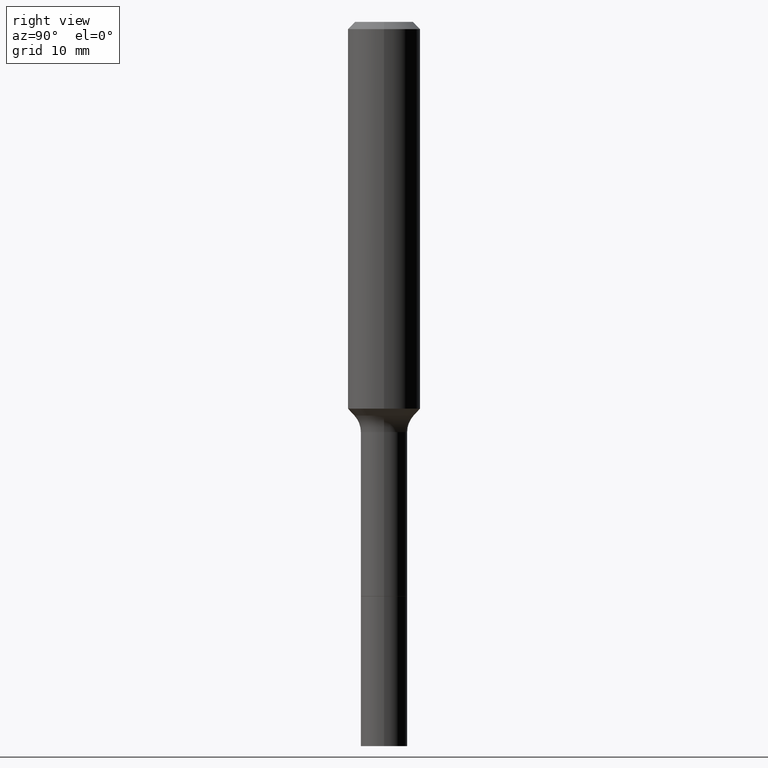
[diagram: clean part render]
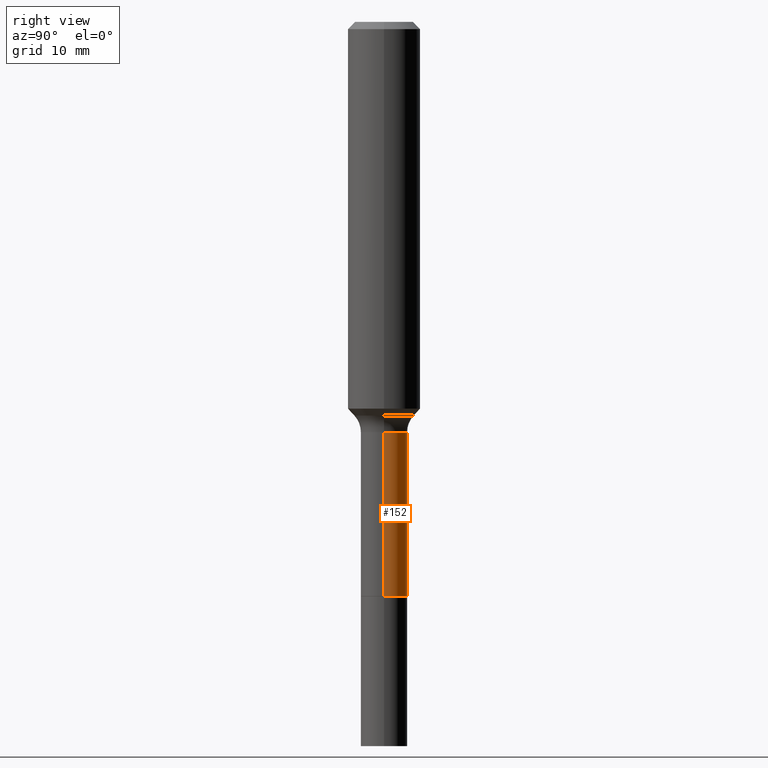
[diagram: same view with one face highlighted and labeled with its STEP entity id]
A machine part, right view. The second image highlights one B-rep face of the part: STEP entity #152.
In plain terms, the highlighted cylindrical surface (edge-blend (fillet) strip) has radius 1.9304 mm, axis along (-0, 0, 1).
Its self-contained STEP definition (entity closure, byte-faithful):
#6 = AXIS2_PLACEMENT_3D ( 'NONE', #375, #138, #493 ) ;
#35 = AXIS2_PLACEMENT_3D ( 'NONE', #479, #157, #315 ) ;
#58 = DIRECTION ( 'NONE',  ( 1.000000000000000000, -6.982962677686261189E-15, 0.000000000000000000 ) ) ;
#73 = ORIENTED_EDGE ( 'NONE', *, *, #420, .F. ) ;
#79 = VECTOR ( 'NONE', #105, 39.37007874015748143 ) ;
#88 = VERTEX_POINT ( 'NONE', #357 ) ;
#105 = DIRECTION ( 'NONE',  ( -2.445468806185136877E-29, 3.491481338843145188E-15, 1.000000000000000000 ) ) ;
#122 = CIRCLE ( 'NONE', #192, 0.07599999999999994260 ) ;
#123 = CYLINDRICAL_SURFACE ( 'NONE', #35, 0.07599999999999997036 ) ;
#136 = EDGE_LOOP ( 'NONE', ( #391, #304, #381, #73 ) ) ;
#138 = DIRECTION ( 'NONE',  ( -2.445468806185136597E-29, 3.491481338843145583E-15, 1.000000000000000000 ) ) ;
#152 = ADVANCED_FACE ( 'NONE', ( #236 ), #123, .T. ) ;
#157 = DIRECTION ( 'NONE',  ( -2.445468806185136597E-29, 3.491481338843145583E-15, 1.000000000000000000 ) ) ;
#181 = VERTEX_POINT ( 'NONE', #444 ) ;
#192 = AXIS2_PLACEMENT_3D ( 'NONE', #200, #365, #58 ) ;
#194 = LINE ( 'NONE', #361, #460 ) ;
#200 = CARTESIAN_POINT ( 'NONE',  ( 3.272526356436949336E-29, -4.672300327639896745E-15, -1.338200000000000056 ) ) ;
#202 = EDGE_CURVE ( 'NONE', #181, #425, #194, .T. ) ;
#215 = LINE ( 'NONE', #346, #79 ) ;
#220 = VERTEX_POINT ( 'NONE', #396 ) ;
#236 = FACE_OUTER_BOUND ( 'NONE', #136, .T. ) ;
#242 = DIRECTION ( 'NONE',  ( -2.445468806185136877E-29, 3.491481338843145188E-15, 1.000000000000000000 ) ) ;
#245 = EDGE_CURVE ( 'NONE', #88, #425, #122, .T. ) ;
#304 = ORIENTED_EDGE ( 'NONE', *, *, #202, .T. ) ;
#315 = DIRECTION ( 'NONE',  ( 1.000000000000000000, -6.982962677686267499E-15, 4.876176775795935793E-29 ) ) ;
#346 = CARTESIAN_POINT ( 'NONE',  ( 0.07599999999999997036, -5.307051635041561162E-16, 3.705894349604909549E-30 ) ) ;
#357 = CARTESIAN_POINT ( 'NONE',  ( 0.07599999999999994260, -5.203005491144051974E-15, -1.338200000000000056 ) ) ;
#361 = CARTESIAN_POINT ( 'NONE',  ( -0.07599999999999997036, 5.400124791776759306E-16, -3.738390668593726595E-30 ) ) ;
#365 = DIRECTION ( 'NONE',  ( -2.445468806185136597E-29, 3.491481338843145583E-15, 1.000000000000000000 ) ) ;
#375 = CARTESIAN_POINT ( 'NONE',  ( 4.582074902149090284E-29, -6.541988584590402009E-15, -1.873699999999999921 ) ) ;
#381 = ORIENTED_EDGE ( 'NONE', *, *, #245, .F. ) ;
#386 = CARTESIAN_POINT ( 'NONE',  ( -0.07599999999999994260, -5.067131976937473545E-15, -1.338200000000000056 ) ) ;
#391 = ORIENTED_EDGE ( 'NONE', *, *, #508, .T. ) ;
#396 = CARTESIAN_POINT ( 'NONE',  ( 0.07600000000000001199, -7.072693748094558815E-15, -1.873699999999999921 ) ) ;
#420 = EDGE_CURVE ( 'NONE', #220, #88, #215, .T. ) ;
#425 = VERTEX_POINT ( 'NONE', #386 ) ;
#444 = CARTESIAN_POINT ( 'NONE',  ( -0.07600000000000001199, -5.067131976937472756E-15, -1.873699999999999921 ) ) ;
#454 = CIRCLE ( 'NONE', #6, 0.07600000000000001199 ) ;
#460 = VECTOR ( 'NONE', #242, 39.37007874015748143 ) ;
#479 = CARTESIAN_POINT ( 'NONE',  ( 0.000000000000000000, 0.000000000000000000, 0.000000000000000000 ) ) ;
#493 = DIRECTION ( 'NONE',  ( 1.000000000000000000, -6.982962677686267499E-15, 0.000000000000000000 ) ) ;
#508 = EDGE_CURVE ( 'NONE', #220, #181, #454, .T. ) ;